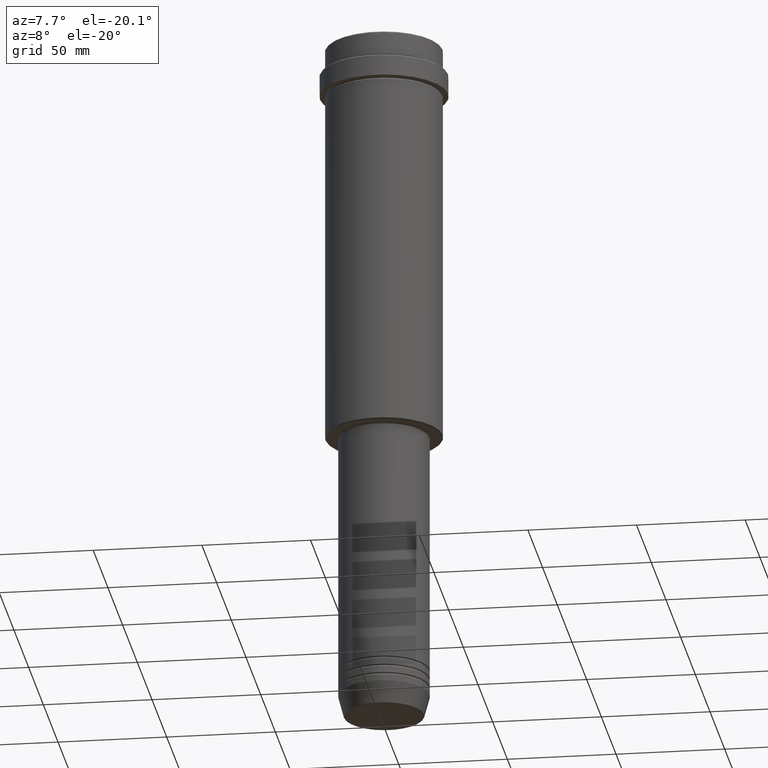
[diagram: clean part render]
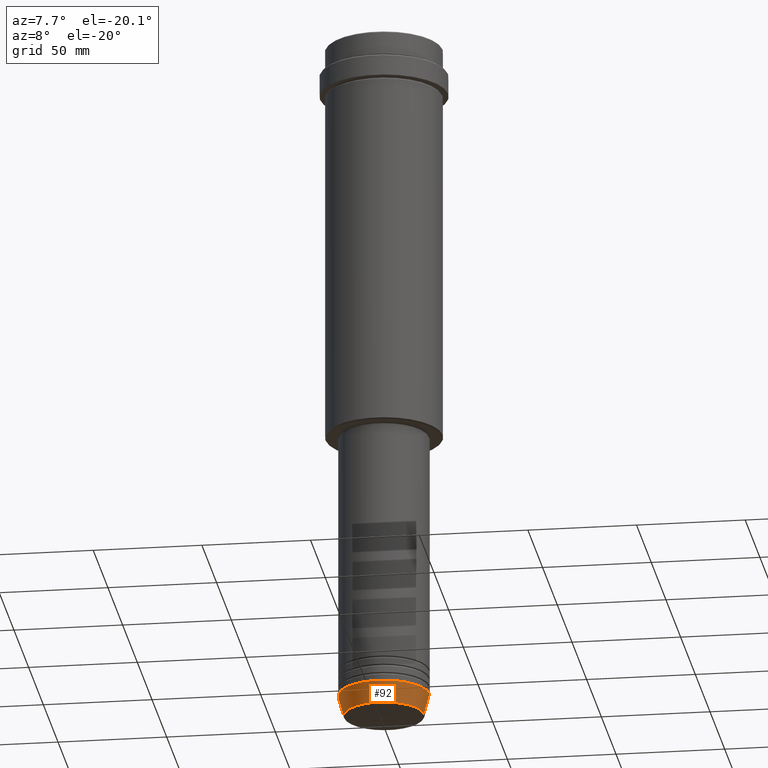
[diagram: same view with one face highlighted and labeled with its STEP entity id]
A machine part, auxiliary view. The second image highlights one B-rep face of the part: STEP entity #92.
In plain terms, the highlighted conical surface has half-angle 15 deg.
Its self-contained STEP definition (entity closure, byte-faithful):
#16 = ORIENTED_EDGE ( 'NONE', *, *, #432, .T. ) ;
#45 = DIRECTION ( 'NONE',  ( -0.000000000000000000, -0.000000000000000000, 1.000000000000000000 ) ) ;
#81 = LINE ( 'NONE', #1040, #1381 ) ;
#92 = ADVANCED_FACE ( 'NONE', ( #152 ), #308, .T. ) ;
#152 = FACE_OUTER_BOUND ( 'NONE', #199, .T. ) ;
#199 = EDGE_LOOP ( 'NONE', ( #1010, #1311, #16, #977 ) ) ;
#219 = VERTEX_POINT ( 'NONE', #728 ) ;
#229 = CARTESIAN_POINT ( 'NONE',  ( 21.00000000000000000, 0.000000000000000000, -313.0000000000000000 ) ) ;
#308 = CONICAL_SURFACE ( 'NONE', #635, 21.00000000000000000, 0.2617993877991499074 ) ;
#332 = CARTESIAN_POINT ( 'NONE',  ( 0.000000000000000000, 0.000000000000000000, -313.0000000000000000 ) ) ;
#338 = EDGE_CURVE ( 'NONE', #543, #735, #1026, .T. ) ;
#377 = DIRECTION ( 'NONE',  ( 1.000000000000000000, 0.000000000000000000, 0.000000000000000000 ) ) ;
#430 = VERTEX_POINT ( 'NONE', #607 ) ;
#432 = EDGE_CURVE ( 'NONE', #430, #735, #81, .T. ) ;
#486 = DIRECTION ( 'NONE',  ( 1.000000000000000000, 0.000000000000000000, 0.000000000000000000 ) ) ;
#525 = DIRECTION ( 'NONE',  ( -0.000000000000000000, -0.000000000000000000, 1.000000000000000000 ) ) ;
#540 = LINE ( 'NONE', #555, #827 ) ;
#543 = VERTEX_POINT ( 'NONE', #725 ) ;
#555 = CARTESIAN_POINT ( 'NONE',  ( -21.00000000000000000, 2.571758278209441661E-15, -313.0000000000000000 ) ) ;
#560 = EDGE_CURVE ( 'NONE', #219, #543, #540, .T. ) ;
#592 = CARTESIAN_POINT ( 'NONE',  ( 0.000000000000000000, 0.000000000000000000, -313.0000000000000000 ) ) ;
#607 = CARTESIAN_POINT ( 'NONE',  ( 18.41980749484383750, 0.000000000000000000, -322.6294095225512706 ) ) ;
#612 = DIRECTION ( 'NONE',  ( 0.2588190451025211836, 0.000000000000000000, 0.9659258262890680902 ) ) ;
#635 = AXIS2_PLACEMENT_3D ( 'NONE', #592, #45, #377 ) ;
#643 = EDGE_CURVE ( 'NONE', #219, #430, #1158, .T. ) ;
#658 = AXIS2_PLACEMENT_3D ( 'NONE', #1033, #687, #486 ) ;
#687 = DIRECTION ( 'NONE',  ( -0.000000000000000000, -0.000000000000000000, 1.000000000000000000 ) ) ;
#725 = CARTESIAN_POINT ( 'NONE',  ( -21.00000000000000000, 2.571758278209441661E-15, -313.0000000000000000 ) ) ;
#728 = CARTESIAN_POINT ( 'NONE',  ( -18.41980749484383750, 2.413767053578267458E-15, -322.6294095225512706 ) ) ;
#735 = VERTEX_POINT ( 'NONE', #229 ) ;
#827 = VECTOR ( 'NONE', #1294, 1000.000000000000114 ) ;
#957 = DIRECTION ( 'NONE',  ( 1.000000000000000000, 0.000000000000000000, 0.000000000000000000 ) ) ;
#977 = ORIENTED_EDGE ( 'NONE', *, *, #338, .F. ) ;
#1010 = ORIENTED_EDGE ( 'NONE', *, *, #560, .F. ) ;
#1026 = CIRCLE ( 'NONE', #1223, 21.00000000000000000 ) ;
#1033 = CARTESIAN_POINT ( 'NONE',  ( 0.000000000000000000, 0.000000000000000000, -322.6294095225512706 ) ) ;
#1040 = CARTESIAN_POINT ( 'NONE',  ( 21.00000000000000000, 0.000000000000000000, -313.0000000000000000 ) ) ;
#1158 = CIRCLE ( 'NONE', #658, 18.41980749484383750 ) ;
#1223 = AXIS2_PLACEMENT_3D ( 'NONE', #332, #525, #957 ) ;
#1294 = DIRECTION ( 'NONE',  ( -0.2588190451025211836, 3.169619151431770488E-17, 0.9659258262890680902 ) ) ;
#1311 = ORIENTED_EDGE ( 'NONE', *, *, #643, .T. ) ;
#1381 = VECTOR ( 'NONE', #612, 1000.000000000000114 ) ;